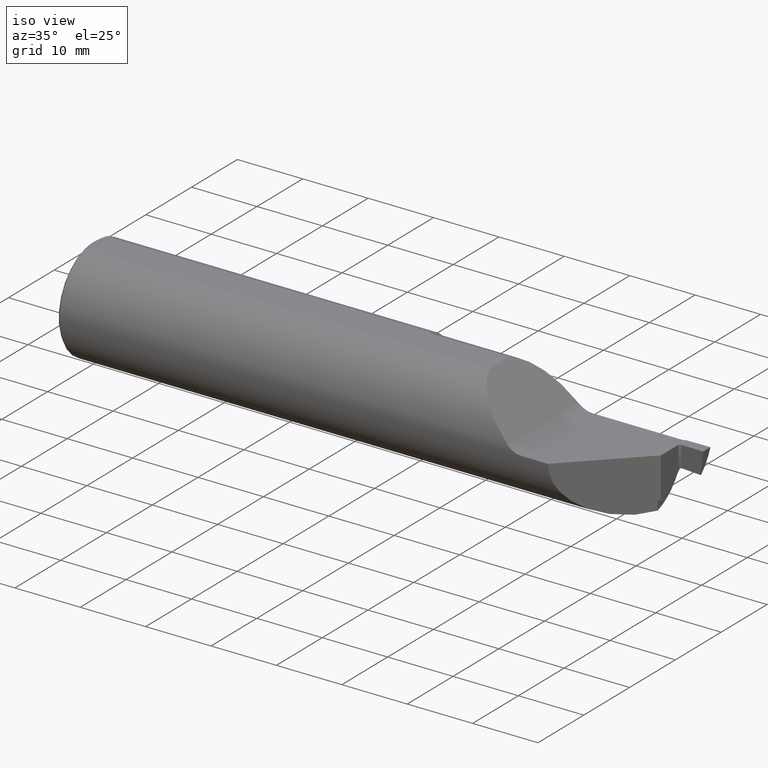
[diagram: clean part render]
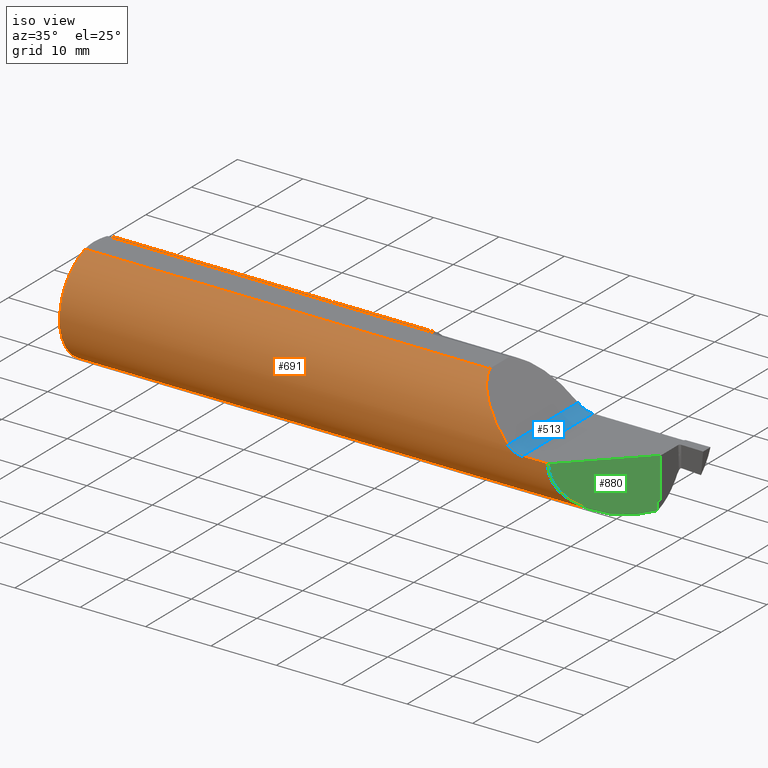
[diagram: same view with three faces highlighted in distinct colors, each labeled with its STEP entity id]
A machine part, iso view with three faces highlighted in distinct colors.
Their STEP definitions:

[orange] entity #691 — the highlighted cylindrical surface (partial cylindrical patch) has radius 7.9337 mm, axis along (-1, -0, -0).
#2 = CIRCLE ( 'NONE', #670, 0.3123500000000000165 ) ;
#4 = CARTESIAN_POINT ( 'NONE',  ( 3.262867780507748616, -0.004482219492250623903, -0.3123178384409545649 ) ) ;
#6 =( BOUNDED_CURVE ( )  B_SPLINE_CURVE ( 3, ( #4, #267, #136, #488 ),
 .UNSPECIFIED., .F., .T. ) 
 B_SPLINE_CURVE_WITH_KNOTS ( ( 4, 4 ),
 ( 4.726739463297899846, 6.283185307179586232 ),
 .UNSPECIFIED. ) 
 CURVE ( )  GEOMETRIC_REPRESENTATION_ITEM ( )  RATIONAL_B_SPLINE_CURVE ( ( 1.000000000000000000, 0.8081081314968836526, 0.8081081314968836526, 1.000000000000000000 ) ) 
 REPRESENTATION_ITEM ( '' )  );
#9 = LINE ( 'NONE', #498, #421 ) ;
#18 = EDGE_CURVE ( 'NONE', #275, #256, #454, .T. ) ;
#35 = CARTESIAN_POINT ( 'NONE',  ( 2.954999999999998295, -0.3123499999999999610, 0.000000000000000000 ) ) ;
#39 = CARTESIAN_POINT ( 'NONE',  ( 1.960064105020415504, 0.1371422438581685610, -0.2810169237995415181 ) ) ;
#40 = VERTEX_POINT ( 'NONE', #80 ) ;
#51 = CARTESIAN_POINT ( 'NONE',  ( 0.01500000000000059272, 0.000000000000000000, -0.3123500000000000165 ) ) ;
#52 = CARTESIAN_POINT ( 'NONE',  ( 1.960609346587106394, 0.09615431653023193137, -0.2975417998640902950 ) ) ;
#55 = CARTESIAN_POINT ( 'NONE',  ( 2.711388347648313157, -0.3101968881405479106, 0.03661165235168182402 ) ) ;
#73 = CIRCLE ( 'NONE', #371, 0.3123500000000000165 ) ;
#75 = CARTESIAN_POINT ( 'NONE',  ( 2.767437696019467985, -0.3123286490856566622, 0.003981597903693289385 ) ) ;
#77 = CARTESIAN_POINT ( 'NONE',  ( 1.960187379179326728, 0.1171499089251766407, 0.2906996517855017781 ) ) ;
#80 = CARTESIAN_POINT ( 'NONE',  ( 2.711388347648313157, -0.3101968881405479106, 0.03661165235168182402 ) ) ;
#85 = EDGE_CURVE ( 'NONE', #805, #471, #755, .T. ) ;
#94 = CARTESIAN_POINT ( 'NONE',  ( 0.01499999999999581182, -0.09246512856207692033, 0.2983500000000000041 ) ) ;
#109 = ORIENTED_EDGE ( 'NONE', *, *, #556, .T. ) ;
#128 = CARTESIAN_POINT ( 'NONE',  ( 1.968000000000000416, -0.004482219491799574983, -0.3123178384409500685 ) ) ;
#129 = VERTEX_POINT ( 'NONE', #789 ) ;
#136 = CARTESIAN_POINT ( 'NONE',  ( 2.954999999999998295, -0.3123500000000000165, -0.1808952411000439298 ) ) ;
#173 = DIRECTION ( 'NONE',  ( 0.000000000000000000, 0.000000000000000000, -1.000000000000000000 ) ) ;
#177 = CARTESIAN_POINT ( 'NONE',  ( 2.449649999999997885, -0.09246512856206932918, 0.2983500000000000041 ) ) ;
#182 = VERTEX_POINT ( 'NONE', #35 ) ;
#203 = VERTEX_POINT ( 'NONE', #237 ) ;
#206 = CARTESIAN_POINT ( 'NONE',  ( 2.783406291026808255, -0.3123529779476911239, 0.0008095237780517812410 ) ) ;
#210 = CARTESIAN_POINT ( 'NONE',  ( 2.711388347648313157, -0.3101968881405479106, 0.03661165235168182402 ) ) ;
#218 = VECTOR ( 'NONE', #433, 39.37007874015748143 ) ;
#226 =( BOUNDED_CURVE ( )  B_SPLINE_CURVE ( 3, ( #55, #607, #669, #177 ),
 .UNSPECIFIED., .F., .T. ) 
 B_SPLINE_CURVE_WITH_KNOTS ( ( 4, 4 ),
 ( 4.829872603322638902, 5.982651106322981249 ),
 .UNSPECIFIED. ) 
 CURVE ( )  GEOMETRIC_REPRESENTATION_ITEM ( )  RATIONAL_B_SPLINE_CURVE ( ( 1.000000000000000000, 0.8922906463574401537, 0.8922906463574401537, 1.000000000000000000 ) ) 
 REPRESENTATION_ITEM ( '' )  );
#237 = CARTESIAN_POINT ( 'NONE',  ( 3.262867780507748616, -0.004482219492250623903, -0.3123178384409545649 ) ) ;
#240 = CARTESIAN_POINT ( 'NONE',  ( 1.966932488357366005, -0.003051807244517923401, -0.3123353797966956225 ) ) ;
#243 = EDGE_CURVE ( 'NONE', #471, #256, #576, .T. ) ;
#245 = CARTESIAN_POINT ( 'NONE',  ( 1.961347162358179741, 0.06790716442675048814, -0.3052300644977108401 ) ) ;
#249 = CARTESIAN_POINT ( 'NONE',  ( 1.964366784501071495, 0.01335244570052913221, -0.3120861625923382343 ) ) ;
#252 = VERTEX_POINT ( 'NONE', #94 ) ;
#253 = CARTESIAN_POINT ( 'NONE',  ( 1.965693869291541995, 0.002352038502179883053, -0.3123464166765421157 ) ) ;
#254 = ORIENTED_EDGE ( 'NONE', *, *, #744, .T. ) ;
#256 = VERTEX_POINT ( 'NONE', #301 ) ;
#258 = CARTESIAN_POINT ( 'NONE',  ( 1.967211019143644046, -0.003689047498845545586, -0.3123282865089277993 ) ) ;
#259 = VECTOR ( 'NONE', #489, 39.37007874015748143 ) ;
#263 = LINE ( 'NONE', #825, #259 ) ;
#267 = CARTESIAN_POINT ( 'NONE',  ( 3.081991165541784206, -0.1853588344582151326, -0.3097219934730743307 ) ) ;
#268 = EDGE_CURVE ( 'NONE', #129, #275, #73, .T. ) ;
#269 = CARTESIAN_POINT ( 'NONE',  ( 2.723623800555937446, -0.3113371557985921134, 0.02553995178686549114 ) ) ;
#275 = VERTEX_POINT ( 'NONE', #526 ) ;
#293 = VERTEX_POINT ( 'NONE', #128 ) ;
#301 = CARTESIAN_POINT ( 'NONE',  ( 1.960728097748990928, 0.09246512856206982878, 0.2983499999999997820 ) ) ;
#308 = CARTESIAN_POINT ( 'NONE',  ( 1.964719845097705253, 0.009679807099238829302, -0.3122214714403780400 ) ) ;
#311 = DIRECTION ( 'NONE',  ( 1.000000000000000000, 0.000000000000000000, 0.000000000000000000 ) ) ;
#312 = DIRECTION ( 'NONE',  ( 0.000000000000000000, 0.000000000000000000, -1.000000000000000000 ) ) ;
#313 = VECTOR ( 'NONE', #519, 39.37007874015748143 ) ;
#314 = ORIENTED_EDGE ( 'NONE', *, *, #243, .T. ) ;
#315 = ORIENTED_EDGE ( 'NONE', *, *, #461, .T. ) ;
#318 = CARTESIAN_POINT ( 'NONE',  ( 1.960368899908756068, 0.1101505059355021715, -0.2926523065932738477 ) ) ;
#322 = CARTESIAN_POINT ( 'NONE',  ( 1.967582275049901019, -0.004280569045032564177, -0.3123207262714674526 ) ) ;
#334 = EDGE_CURVE ( 'NONE', #293, #129, #887, .T. ) ;
#335 = CARTESIAN_POINT ( 'NONE',  ( 2.799776695296631868, -0.3123499999999999610, 0.000000000000000000 ) ) ;
#342 = CARTESIAN_POINT ( 'NONE',  ( 2.744373049089623429, -0.3121094746894236827, 0.01265018863995691530 ) ) ;
#343 = ORIENTED_EDGE ( 'NONE', *, *, #681, .F. ) ;
#356 = AXIS2_PLACEMENT_3D ( 'NONE', #883, #376, #535 ) ;
#363 = VERTEX_POINT ( 'NONE', #520 ) ;
#371 = AXIS2_PLACEMENT_3D ( 'NONE', #608, #885, #312 ) ;
#376 = DIRECTION ( 'NONE',  ( -1.000000000000000000, -0.000000000000000000, -0.000000000000000000 ) ) ;
#384 = CARTESIAN_POINT ( 'NONE',  ( 1.967762752467017151, -0.004482219491798915788, -0.3123178384409499575 ) ) ;
#391 = ORIENTED_EDGE ( 'NONE', *, *, #491, .T. ) ;
#410 = CARTESIAN_POINT ( 'NONE',  ( 1.960000000000000409, 0.1626380916929897891, 0.2666671588899965362 ) ) ;
#421 = VECTOR ( 'NONE', #510, 39.37007874015748143 ) ;
#433 = DIRECTION ( 'NONE',  ( 1.000000000000000000, 0.000000000000000000, 0.000000000000000000 ) ) ;
#454 = B_SPLINE_CURVE_WITH_KNOTS ( 'NONE', 3,
 ( #410, #551, #77, #561 ),
 .UNSPECIFIED., .F., .F.,
 ( 4, 4 ),
 ( 0.006483673101505866773, 0.008452642523591418280 ),
 .UNSPECIFIED. ) ;
#458 = ORIENTED_EDGE ( 'NONE', *, *, #18, .F. ) ;
#461 = EDGE_CURVE ( 'NONE', #363, #252, #263, .T. ) ;
#469 = ORIENTED_EDGE ( 'NONE', *, *, #85, .T. ) ;
#471 = VERTEX_POINT ( 'NONE', #821 ) ;
#472 = CARTESIAN_POINT ( 'NONE',  ( 1.966216365614061878, -0.0003701974552680141581, -0.3123510986899081798 ) ) ;
#479 = CARTESIAN_POINT ( 'NONE',  ( 2.759502396207997421, -0.3123005131455937611, 0.006382863975782117338 ) ) ;
#486 = DIRECTION ( 'NONE',  ( 1.000000000000000000, 0.000000000000000000, 0.000000000000000000 ) ) ;
#488 = CARTESIAN_POINT ( 'NONE',  ( 2.954999999999998295, -0.3123499999999999610, 0.000000000000000000 ) ) ;
#489 = DIRECTION ( 'NONE',  ( -1.000000000000000000, -0.000000000000000000, -0.000000000000000000 ) ) ;
#491 = EDGE_CURVE ( 'NONE', #827, #40, #776, .T. ) ;
#498 = CARTESIAN_POINT ( 'NONE',  ( 0.000000000000000000, -0.3123499999999999610, 0.000000000000000000 ) ) ;
#510 = DIRECTION ( 'NONE',  ( -1.000000000000000000, -0.000000000000000000, -0.000000000000000000 ) ) ;
#515 = LINE ( 'NONE', #741, #313 ) ;
#516 = CARTESIAN_POINT ( 'NONE',  ( 1.966790529255113551, -0.002606986316049827307, -0.3123394367519735648 ) ) ;
#519 = DIRECTION ( 'NONE',  ( -1.000000000000000000, -0.000000000000000000, -0.000000000000000000 ) ) ;
#520 = CARTESIAN_POINT ( 'NONE',  ( 2.449649999999997885, -0.09246512856206932918, 0.2983500000000000041 ) ) ;
#522 = EDGE_LOOP ( 'NONE', ( #343, #884, #109, #391, #803, #315, #254, #469, #314, #458, #709, #787 ) ) ;
#526 = CARTESIAN_POINT ( 'NONE',  ( 1.960000000000000409, 0.1626380916929897891, 0.2666671588899965362 ) ) ;
#535 = DIRECTION ( 'NONE',  ( 0.000000000000000000, 0.000000000000000000, 1.000000000000000000 ) ) ;
#537 = CARTESIAN_POINT ( 'NONE',  ( 1.963427599574049998, 0.02437431679596222672, -0.3114844585720413783 ) ) ;
#539 = AXIS2_PLACEMENT_3D ( 'NONE', #548, #486, #839 ) ;
#548 = CARTESIAN_POINT ( 'NONE',  ( 0.01500000000000059099, 0.000000000000000000, 0.000000000000000000 ) ) ;
#550 = CARTESIAN_POINT ( 'NONE',  ( 2.717205864027919304, -0.3108835129758812377, 0.03079413597207513245 ) ) ;
#551 = CARTESIAN_POINT ( 'NONE',  ( 1.960000000000000409, 0.1408597388205671819, 0.2799495959404788570 ) ) ;
#556 = EDGE_CURVE ( 'NONE', #182, #827, #9, .T. ) ;
#558 = CARTESIAN_POINT ( 'NONE',  ( 2.799776695296631868, -0.3123499999999999610, 0.000000000000000000 ) ) ;
#561 = CARTESIAN_POINT ( 'NONE',  ( 1.960728097748990928, 0.09246512856206982878, 0.2983499999999997820 ) ) ;
#576 = LINE ( 'NONE', #649, #218 ) ;
#593 = CARTESIAN_POINT ( 'NONE',  ( 1.960000000000000409, 0.1501376569286136109, -0.2742910705252852854 ) ) ;
#603 = CARTESIAN_POINT ( 'NONE',  ( 0.01500000000000059099, 0.000000000000000000, 0.000000000000000000 ) ) ;
#604 = CARTESIAN_POINT ( 'NONE',  ( 1.960000000000000409, 0.1626380916929897891, -0.2666671588899965362 ) ) ;
#607 = CARTESIAN_POINT ( 'NONE',  ( 2.585078726976065333, -0.2952889245292886766, 0.1629212730239304185 ) ) ;
#608 = CARTESIAN_POINT ( 'NONE',  ( 1.960000000000000409, 0.000000000000000000, 0.000000000000000000 ) ) ;
#649 = CARTESIAN_POINT ( 'NONE',  ( 0.000000000000000000, 0.09246512856206932918, 0.2983500000000000041 ) ) ;
#669 = CARTESIAN_POINT ( 'NONE',  ( 2.487301039583585283, -0.2139507938550457289, 0.2606989604164116070 ) ) ;
#670 = AXIS2_PLACEMENT_3D ( 'NONE', #603, #311, #173 ) ;
#671 = CARTESIAN_POINT ( 'NONE',  ( 1.966409111413173871, -0.001273356502921675019, -0.3123486698802878103 ) ) ;
#681 = EDGE_CURVE ( 'NONE', #203, #293, #515, .T. ) ;
#691 = ADVANCED_FACE ( 'NONE', ( #799 ), #806, .T. ) ;
#696 = CARTESIAN_POINT ( 'NONE',  ( 2.791522665335699482, -0.3123499999999999055, 1.500648922300925238E-19 ) ) ;
#709 = ORIENTED_EDGE ( 'NONE', *, *, #268, .F. ) ;
#727 = CARTESIAN_POINT ( 'NONE',  ( 1.961830507054226791, 0.05356421249217874214, -0.3080725500969381248 ) ) ;
#741 = CARTESIAN_POINT ( 'NONE',  ( 2.654999999999999805, -0.004482219491794909444, -0.3123178384409500685 ) ) ;
#744 = EDGE_CURVE ( 'NONE', #252, #805, #2, .T. ) ;
#755 = CIRCLE ( 'NONE', #539, 0.3123500000000000165 ) ;
#760 = EDGE_CURVE ( 'NONE', #40, #363, #226, .T. ) ;
#776 = B_SPLINE_CURVE_WITH_KNOTS ( 'NONE', 3,
 ( #558, #696, #206, #75, #479, #342, #900, #269, #550, #210 ),
 .UNSPECIFIED., .F., .F.,
 ( 4, 2, 2, 2, 4 ),
 ( 0.000000000000000000, 0.0006200545602135924036, 0.001240109120427184807, 0.001860163680640777211, 0.002480218240854369614 ),
 .UNSPECIFIED. ) ;
#787 = ORIENTED_EDGE ( 'NONE', *, *, #334, .F. ) ;
#789 = CARTESIAN_POINT ( 'NONE',  ( 1.960000000000000409, 0.1626380916929897891, -0.2666671588899965362 ) ) ;
#796 = CARTESIAN_POINT ( 'NONE',  ( 1.965429668006681618, 0.004185134267808203641, -0.3123273330972310413 ) ) ;
#799 = FACE_OUTER_BOUND ( 'NONE', #522, .T. ) ;
#803 = ORIENTED_EDGE ( 'NONE', *, *, #760, .T. ) ;
#805 = VERTEX_POINT ( 'NONE', #51 ) ;
#806 = CYLINDRICAL_SURFACE ( 'NONE', #356, 0.3123500000000000165 ) ;
#813 = EDGE_CURVE ( 'NONE', #203, #182, #6, .T. ) ;
#819 = CARTESIAN_POINT ( 'NONE',  ( 1.962978368751124858, 0.03172692508847087950, -0.3108210889647209374 ) ) ;
#821 = CARTESIAN_POINT ( 'NONE',  ( 0.01500000000000059099, 0.09246512856206932918, 0.2983500000000000041 ) ) ;
#825 = CARTESIAN_POINT ( 'NONE',  ( 0.000000000000000000, -0.09246512856206932918, 0.2983500000000000041 ) ) ;
#827 = VERTEX_POINT ( 'NONE', #335 ) ;
#839 = DIRECTION ( 'NONE',  ( 0.000000000000000000, 0.000000000000000000, -1.000000000000000000 ) ) ;
#863 = CARTESIAN_POINT ( 'NONE',  ( 1.968000000000000416, -0.004482219491799574983, -0.3123178384409500685 ) ) ;
#872 = CARTESIAN_POINT ( 'NONE',  ( 1.967313356345119502, -0.003896778605827549632, -0.3123257505339309126 ) ) ;
#883 = CARTESIAN_POINT ( 'NONE',  ( 0.000000000000000000, 0.000000000000000000, 0.000000000000000000 ) ) ;
#884 = ORIENTED_EDGE ( 'NONE', *, *, #813, .T. ) ;
#885 = DIRECTION ( 'NONE',  ( 1.000000000000000000, 0.000000000000000000, 0.000000000000000000 ) ) ;
#887 = B_SPLINE_CURVE_WITH_KNOTS ( 'NONE', 3,
 ( #863, #384, #322, #872, #258, #240, #516, #671, #472, #253, #796, #308, #249, #537, #819, #727, #245, #52, #318, #39, #593, #604 ),
 .UNSPECIFIED., .F., .F.,
 ( 4, 2, 2, 2, 2, 2, 2, 2, 2, 2, 4 ),
 ( 1.970594229852846459E-07, 1.803909044337599873E-05, 3.588112146376670866E-05, 7.156518350454814208E-05, 0.0001429333075861110225, 0.0002856695557492367832, 0.0005711420520754855942, 0.001142087044727985602, 0.002283977030032986050, 0.003425867015337986064, 0.004567757000642986079 ),
 .UNSPECIFIED. ) ;
#900 = CARTESIAN_POINT ( 'NONE',  ( 2.737198267252211270, -0.3119476854304215618, 0.01648500144479711146 ) ) ;

[blue] entity #513 — the highlighted cylindrical surface (edge-blend (fillet) strip) has radius 3.175 mm, axis along (0, -1, 0).
#37 = ORIENTED_EDGE ( 'NONE', *, *, #852, .F. ) ;
#40 = VERTEX_POINT ( 'NONE', #80 ) ;
#70 = CYLINDRICAL_SURFACE ( 'NONE', #270, 0.1250000000000000000 ) ;
#75 = CARTESIAN_POINT ( 'NONE',  ( 2.767437696019467985, -0.3123286490856566622, 0.003981597903693289385 ) ) ;
#79 = CARTESIAN_POINT ( 'NONE',  ( 2.711388347648312713, 0.2951971671624064042, 0.03661165235168226811 ) ) ;
#80 = CARTESIAN_POINT ( 'NONE',  ( 2.711388347648313157, -0.3101968881405479106, 0.03661165235168182402 ) ) ;
#113 = EDGE_CURVE ( 'NONE', #396, #827, #626, .T. ) ;
#126 = CARTESIAN_POINT ( 'NONE',  ( 2.767240569818964158, 0.2973273312837141913, 0.004032474903713762111 ) ) ;
#133 = CARTESIAN_POINT ( 'NONE',  ( 2.799776695296631868, 0.2973492383597807764, -1.707404996040164512E-17 ) ) ;
#141 = FACE_OUTER_BOUND ( 'NONE', #534, .T. ) ;
#144 = CARTESIAN_POINT ( 'NONE',  ( 2.723503842258455432, 0.2963290950768751042, 0.02563397962624387738 ) ) ;
#146 = VECTOR ( 'NONE', #830, 39.37007874015748143 ) ;
#180 = B_SPLINE_CURVE_WITH_KNOTS ( 'NONE', 3,
 ( #890, #205, #144, #552, #837, #624, #126, #761, #264, #398 ),
 .UNSPECIFIED., .F., .F.,
 ( 4, 2, 2, 2, 4 ),
 ( 0.000000000000000000, 0.0006199328346996068641, 0.001239865669399213728, 0.001859798504098820592, 0.002479731338798427456 ),
 .UNSPECIFIED. ) ;
#205 = CARTESIAN_POINT ( 'NONE',  ( 2.717205560604044390, 0.2958834220351636568, 0.03079443939595079630 ) ) ;
#206 = CARTESIAN_POINT ( 'NONE',  ( 2.783406291026808255, -0.3123529779476911239, 0.0008095237780517812410 ) ) ;
#210 = CARTESIAN_POINT ( 'NONE',  ( 2.711388347648313157, -0.3101968881405479106, 0.03661165235168182402 ) ) ;
#264 = CARTESIAN_POINT ( 'NONE',  ( 2.791523900243894740, 0.2973492383597807209, -2.254308158834279832E-17 ) ) ;
#269 = CARTESIAN_POINT ( 'NONE',  ( 2.723623800555937446, -0.3113371557985921134, 0.02553995178686549114 ) ) ;
#270 = AXIS2_PLACEMENT_3D ( 'NONE', #625, #792, #705 ) ;
#274 = CARTESIAN_POINT ( 'NONE',  ( 2.799776695296631868, -0.4123500000000000498, 0.000000000000000000 ) ) ;
#335 = CARTESIAN_POINT ( 'NONE',  ( 2.799776695296631868, -0.3123499999999999610, 0.000000000000000000 ) ) ;
#342 = CARTESIAN_POINT ( 'NONE',  ( 2.744373049089623429, -0.3121094746894236827, 0.01265018863995691530 ) ) ;
#396 = VERTEX_POINT ( 'NONE', #133 ) ;
#398 = CARTESIAN_POINT ( 'NONE',  ( 2.799776695296631868, 0.2973492383597807764, -1.707404996040164512E-17 ) ) ;
#401 = ORIENTED_EDGE ( 'NONE', *, *, #491, .F. ) ;
#460 = VERTEX_POINT ( 'NONE', #79 ) ;
#476 = LINE ( 'NONE', #622, #146 ) ;
#479 = CARTESIAN_POINT ( 'NONE',  ( 2.759502396207997421, -0.3123005131455937611, 0.006382863975782117338 ) ) ;
#487 = EDGE_CURVE ( 'NONE', #40, #460, #476, .T. ) ;
#491 = EDGE_CURVE ( 'NONE', #827, #40, #776, .T. ) ;
#513 = ADVANCED_FACE ( 'NONE', ( #141 ), #70, .F. ) ;
#534 = EDGE_LOOP ( 'NONE', ( #37, #703, #401, #743 ) ) ;
#550 = CARTESIAN_POINT ( 'NONE',  ( 2.717205864027919304, -0.3108835129758812377, 0.03079413597207513245 ) ) ;
#552 = CARTESIAN_POINT ( 'NONE',  ( 2.737023584286429223, 0.2969416066437379764, 0.01658781814739456600 ) ) ;
#558 = CARTESIAN_POINT ( 'NONE',  ( 2.799776695296631868, -0.3123499999999999610, 0.000000000000000000 ) ) ;
#622 = CARTESIAN_POINT ( 'NONE',  ( 2.711388347648313157, 0.4123500000000000498, 0.03661165235168205301 ) ) ;
#624 = CARTESIAN_POINT ( 'NONE',  ( 2.759453897954011747, 0.2972994535838715535, 0.006399527291019162234 ) ) ;
#625 = CARTESIAN_POINT ( 'NONE',  ( 2.799776695296631868, -0.4123500000000000498, 0.1249999999999999861 ) ) ;
#626 = LINE ( 'NONE', #274, #726 ) ;
#696 = CARTESIAN_POINT ( 'NONE',  ( 2.791522665335699482, -0.3123499999999999055, 1.500648922300925238E-19 ) ) ;
#703 = ORIENTED_EDGE ( 'NONE', *, *, #487, .F. ) ;
#705 = DIRECTION ( 'NONE',  ( 0.000000000000000000, 0.000000000000000000, -1.000000000000000000 ) ) ;
#726 = VECTOR ( 'NONE', #766, 39.37007874015748143 ) ;
#743 = ORIENTED_EDGE ( 'NONE', *, *, #113, .F. ) ;
#761 = CARTESIAN_POINT ( 'NONE',  ( 2.783262096974776334, 0.2973522559233172102, 0.0008266951744985345579 ) ) ;
#766 = DIRECTION ( 'NONE',  ( 0.000000000000000000, -1.000000000000000000, 0.000000000000000000 ) ) ;
#776 = B_SPLINE_CURVE_WITH_KNOTS ( 'NONE', 3,
 ( #558, #696, #206, #75, #479, #342, #900, #269, #550, #210 ),
 .UNSPECIFIED., .F., .F.,
 ( 4, 2, 2, 2, 4 ),
 ( 0.000000000000000000, 0.0006200545602135924036, 0.001240109120427184807, 0.001860163680640777211, 0.002480218240854369614 ),
 .UNSPECIFIED. ) ;
#792 = DIRECTION ( 'NONE',  ( 0.000000000000000000, -1.000000000000000000, 0.000000000000000000 ) ) ;
#827 = VERTEX_POINT ( 'NONE', #335 ) ;
#830 = DIRECTION ( 'NONE',  ( -0.000000000000000000, 1.000000000000000000, -0.000000000000000000 ) ) ;
#837 = CARTESIAN_POINT ( 'NONE',  ( 2.744331949518403757, 0.2971080177065931194, 0.01267066154421023563 ) ) ;
#852 = EDGE_CURVE ( 'NONE', #460, #396, #180, .T. ) ;
#890 = CARTESIAN_POINT ( 'NONE',  ( 2.711388347648312713, 0.2951971671624064042, 0.03661165235168226811 ) ) ;
#900 = CARTESIAN_POINT ( 'NONE',  ( 2.737198267252211270, -0.3119476854304215618, 0.01648500144479711146 ) ) ;

[green] entity #880 — the highlighted planar face has unit normal (-0.7071, 0.7071, 0).
#3 = CARTESIAN_POINT ( 'NONE',  ( 3.344088245977288487, 0.07673824597728906571, -0.2481607617294554480 ) ) ;
#4 = CARTESIAN_POINT ( 'NONE',  ( 3.262867780507748616, -0.004482219492250623903, -0.3123178384409545649 ) ) ;
#6 =( BOUNDED_CURVE ( )  B_SPLINE_CURVE ( 3, ( #4, #267, #136, #488 ),
 .UNSPECIFIED., .F., .T. ) 
 B_SPLINE_CURVE_WITH_KNOTS ( ( 4, 4 ),
 ( 4.726739463297899846, 6.283185307179586232 ),
 .UNSPECIFIED. ) 
 CURVE ( )  GEOMETRIC_REPRESENTATION_ITEM ( )  RATIONAL_B_SPLINE_CURVE ( ( 1.000000000000000000, 0.8081081314968836526, 0.8081081314968836526, 1.000000000000000000 ) ) 
 REPRESENTATION_ITEM ( '' )  );
#7 = CARTESIAN_POINT ( 'NONE',  ( 3.344088245977288487, 0.07673824597728906571, -0.2464578973247775473 ) ) ;
#13 = CARTESIAN_POINT ( 'NONE',  ( 3.353006244820754045, 0.08565624482075563650, -0.2409712390270424553 ) ) ;
#16 = VERTEX_POINT ( 'NONE', #420 ) ;
#35 = CARTESIAN_POINT ( 'NONE',  ( 2.954999999999998295, -0.3123499999999999610, 0.000000000000000000 ) ) ;
#46 = VECTOR ( 'NONE', #201, 39.37007874015748854 ) ;
#48 = AXIS2_PLACEMENT_3D ( 'NONE', #611, #621, #131 ) ;
#67 = CARTESIAN_POINT ( 'NONE',  ( 3.346706985850119942, 0.07935698585012063155, -0.2428819054510645281 ) ) ;
#74 = EDGE_CURVE ( 'NONE', #195, #16, #643, .T. ) ;
#104 = B_SPLINE_CURVE_WITH_KNOTS ( 'NONE', 3,
 ( #811, #457, #112, #190 ),
 .UNSPECIFIED., .F., .F.,
 ( 4, 4 ),
 ( 0.0005057837439297899413, 0.0005810094594214404050 ),
 .UNSPECIFIED. ) ;
#112 = CARTESIAN_POINT ( 'NONE',  ( 3.342690609634284993, 0.07534060963428514113, -0.2991121555470714344 ) ) ;
#121 = VECTOR ( 'NONE', #214, 39.37007874015748143 ) ;
#131 = DIRECTION ( 'NONE',  ( -0.7071067811865484609, -0.7071067811865464625, 0.000000000000000000 ) ) ;
#136 = CARTESIAN_POINT ( 'NONE',  ( 2.954999999999998295, -0.3123500000000000165, -0.1808952411000439298 ) ) ;
#182 = VERTEX_POINT ( 'NONE', #35 ) ;
#190 = CARTESIAN_POINT ( 'NONE',  ( 3.341999999999999638, 0.07464999999999993863, -0.2993193498737371505 ) ) ;
#195 = VERTEX_POINT ( 'NONE', #569 ) ;
#201 = DIRECTION ( 'NONE',  ( -0.7071067811865484609, -0.7071067811865464625, 0.000000000000000000 ) ) ;
#203 = VERTEX_POINT ( 'NONE', #237 ) ;
#214 = DIRECTION ( 'NONE',  ( 0.000000000000000000, 0.000000000000000000, -1.000000000000000000 ) ) ;
#237 = CARTESIAN_POINT ( 'NONE',  ( 3.262867780507748616, -0.004482219492250623903, -0.3123178384409545649 ) ) ;
#248 = ORIENTED_EDGE ( 'NONE', *, *, #860, .T. ) ;
#267 = CARTESIAN_POINT ( 'NONE',  ( 3.081991165541784206, -0.1853588344582151326, -0.3097219934730743307 ) ) ;
#272 = CARTESIAN_POINT ( 'NONE',  ( 3.341999999999999638, 0.07464999999999993863, -0.2993193498737371505 ) ) ;
#279 =( BOUNDED_CURVE ( )  B_SPLINE_CURVE ( 3, ( #272, #478, #833, #325 ),
 .UNSPECIFIED., .F., .T. ) 
 B_SPLINE_CURVE_WITH_KNOTS ( ( 4, 4 ),
 ( 4.420916993469798939, 4.678243010498002619 ),
 .UNSPECIFIED. ) 
 CURVE ( )  GEOMETRIC_REPRESENTATION_ITEM ( )  RATIONAL_B_SPLINE_CURVE ( ( 1.000000000000000000, 0.9944895514512559487, 0.9944895514512559487, 1.000000000000000000 ) ) 
 REPRESENTATION_ITEM ( '' )  );
#282 = VERTEX_POINT ( 'NONE', #676 ) ;
#286 = CARTESIAN_POINT ( 'NONE',  ( 3.354999999999999538, 0.08765000000000008895, -0.2404606667469501857 ) ) ;
#289 = ORIENTED_EDGE ( 'NONE', *, *, #824, .F. ) ;
#325 = CARTESIAN_POINT ( 'NONE',  ( 3.262867780507748616, -0.004482219492250623903, -0.3123178384409545649 ) ) ;
#333 = CARTESIAN_POINT ( 'NONE',  ( 3.347826778802168501, 0.08047677880216869140, -0.2422077719526289641 ) ) ;
#373 = EDGE_CURVE ( 'NONE', #627, #517, #104, .T. ) ;
#412 = ORIENTED_EDGE ( 'NONE', *, *, #373, .F. ) ;
#419 = CARTESIAN_POINT ( 'NONE',  ( 3.354999999999999538, 0.08765000000000008895, 0.000000000000000000 ) ) ;
#420 = CARTESIAN_POINT ( 'NONE',  ( 3.349003216488121382, 0.08165321648812198796, -0.2419317767446564349 ) ) ;
#436 = VECTOR ( 'NONE', #820, 39.37007874015748143 ) ;
#457 = CARTESIAN_POINT ( 'NONE',  ( 3.343390375626667410, 0.07604037562666796091, -0.2989921254642556314 ) ) ;
#462 = ORIENTED_EDGE ( 'NONE', *, *, #865, .F. ) ;
#474 = CARTESIAN_POINT ( 'NONE',  ( 3.354999999999999538, 0.08765000000000008895, -0.3123500000000000165 ) ) ;
#475 = EDGE_CURVE ( 'NONE', #282, #182, #629, .T. ) ;
#478 = CARTESIAN_POINT ( 'NONE',  ( 3.316254690375905145, 0.04890469037590606388, -0.3070433690989630704 ) ) ;
#480 = CARTESIAN_POINT ( 'NONE',  ( 3.349003216488121382, 0.08165321648812198796, -0.2419317767446564349 ) ) ;
#488 = CARTESIAN_POINT ( 'NONE',  ( 2.954999999999998295, -0.3123499999999999610, 0.000000000000000000 ) ) ;
#494 = CARTESIAN_POINT ( 'NONE',  ( 3.344861195303206802, 0.07751119530320711715, -0.2449607290170990881 ) ) ;
#517 = VERTEX_POINT ( 'NONE', #632 ) ;
#538 = VERTEX_POINT ( 'NONE', #582 ) ;
#540 = LINE ( 'NONE', #474, #436 ) ;
#546 = LINE ( 'NONE', #695, #121 ) ;
#569 = CARTESIAN_POINT ( 'NONE',  ( 3.344088245977288487, 0.07673824597728906571, -0.2481607617294554480 ) ) ;
#571 = CARTESIAN_POINT ( 'NONE',  ( 3.351007246404023920, 0.08365724640402535939, -0.2414616263405791052 ) ) ;
#573 = ORIENTED_EDGE ( 'NONE', *, *, #74, .T. ) ;
#582 = CARTESIAN_POINT ( 'NONE',  ( 3.354999999999999538, 0.08765000000000008895, -0.2404606667469501857 ) ) ;
#610 = EDGE_CURVE ( 'NONE', #16, #538, #849, .T. ) ;
#611 = CARTESIAN_POINT ( 'NONE',  ( 3.354999999999999538, 0.08765000000000008895, -0.3123500000000000165 ) ) ;
#621 = DIRECTION ( 'NONE',  ( -0.7071067811865465735, 0.7071067811865485719, 0.000000000000000000 ) ) ;
#627 = VERTEX_POINT ( 'NONE', #711 ) ;
#629 = LINE ( 'NONE', #419, #46 ) ;
#632 = CARTESIAN_POINT ( 'NONE',  ( 3.341999999999999638, 0.07464999999999993863, -0.2993193498737371505 ) ) ;
#636 = CARTESIAN_POINT ( 'NONE',  ( 3.349003216488121382, 0.08165321648812198796, -0.2419317767446564349 ) ) ;
#643 = B_SPLINE_CURVE_WITH_KNOTS ( 'NONE', 3,
 ( #3, #7, #494, #67, #333, #480 ),
 .UNSPECIFIED., .F., .F.,
 ( 4, 2, 4 ),
 ( 0.000000000000000000, 0.0001273459608774670112, 0.0002546919217549340224 ),
 .UNSPECIFIED. ) ;
#676 = CARTESIAN_POINT ( 'NONE',  ( 3.354999999999999538, 0.08765000000000008895, 0.000000000000000000 ) ) ;
#677 = ORIENTED_EDGE ( 'NONE', *, *, #610, .T. ) ;
#682 = EDGE_LOOP ( 'NONE', ( #412, #289, #573, #677, #248, #873, #790, #462 ) ) ;
#695 = CARTESIAN_POINT ( 'NONE',  ( 3.344088245977288487, 0.07673824597728906571, 0.04499999999999999833 ) ) ;
#711 = CARTESIAN_POINT ( 'NONE',  ( 3.344088245977288487, 0.07673824597728919061, -0.2989750571046434491 ) ) ;
#750 = PLANE ( 'NONE',  #48 ) ;
#754 = FACE_OUTER_BOUND ( 'NONE', #682, .T. ) ;
#790 = ORIENTED_EDGE ( 'NONE', *, *, #813, .F. ) ;
#811 = CARTESIAN_POINT ( 'NONE',  ( 3.344088245977288487, 0.07673824597728919061, -0.2989750571046434491 ) ) ;
#813 = EDGE_CURVE ( 'NONE', #203, #182, #6, .T. ) ;
#820 = DIRECTION ( 'NONE',  ( -0.000000000000000000, -0.000000000000000000, 1.000000000000000000 ) ) ;
#824 = EDGE_CURVE ( 'NONE', #195, #627, #546, .T. ) ;
#833 = CARTESIAN_POINT ( 'NONE',  ( 3.289731127147991430, 0.02238112714799254943, -0.3114002067510898142 ) ) ;
#849 =( BOUNDED_CURVE ( )  B_SPLINE_CURVE ( 3, ( #636, #571, #13, #286 ),
 .UNSPECIFIED., .F., .T. ) 
 B_SPLINE_CURVE_WITH_KNOTS ( ( 4, 4 ),
 ( 1.805212607185134432, 1.825796400454384072 ),
 .UNSPECIFIED. ) 
 CURVE ( )  GEOMETRIC_REPRESENTATION_ITEM ( )  RATIONAL_B_SPLINE_CURVE ( ( 1.000000000000000000, 0.9999646925995447910, 0.9999646925995447910, 1.000000000000000000 ) ) 
 REPRESENTATION_ITEM ( '' )  );
#860 = EDGE_CURVE ( 'NONE', #538, #282, #540, .T. ) ;
#865 = EDGE_CURVE ( 'NONE', #517, #203, #279, .T. ) ;
#873 = ORIENTED_EDGE ( 'NONE', *, *, #475, .T. ) ;
#880 = ADVANCED_FACE ( 'NONE', ( #754 ), #750, .F. ) ;